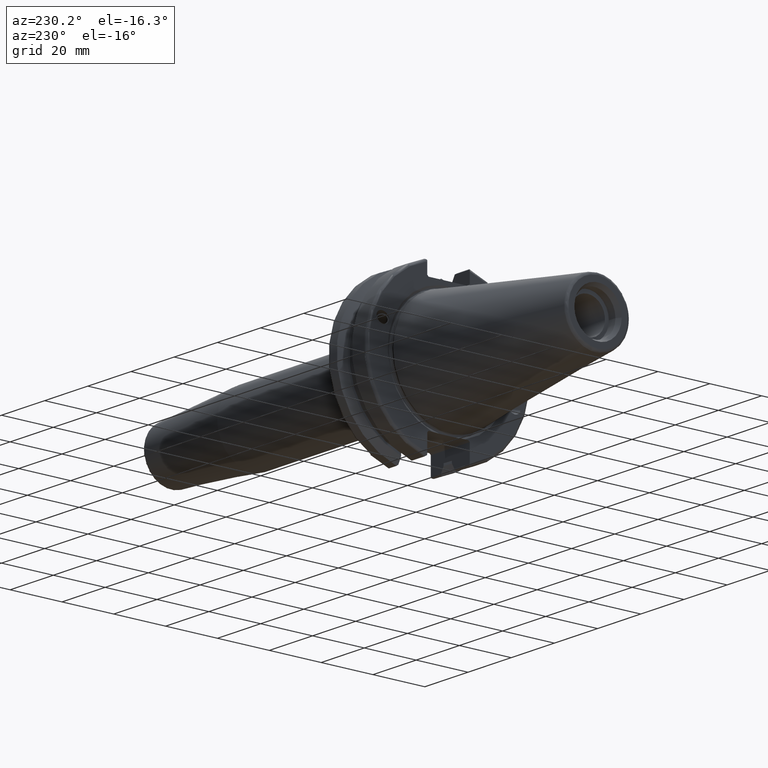
[diagram: clean part render]
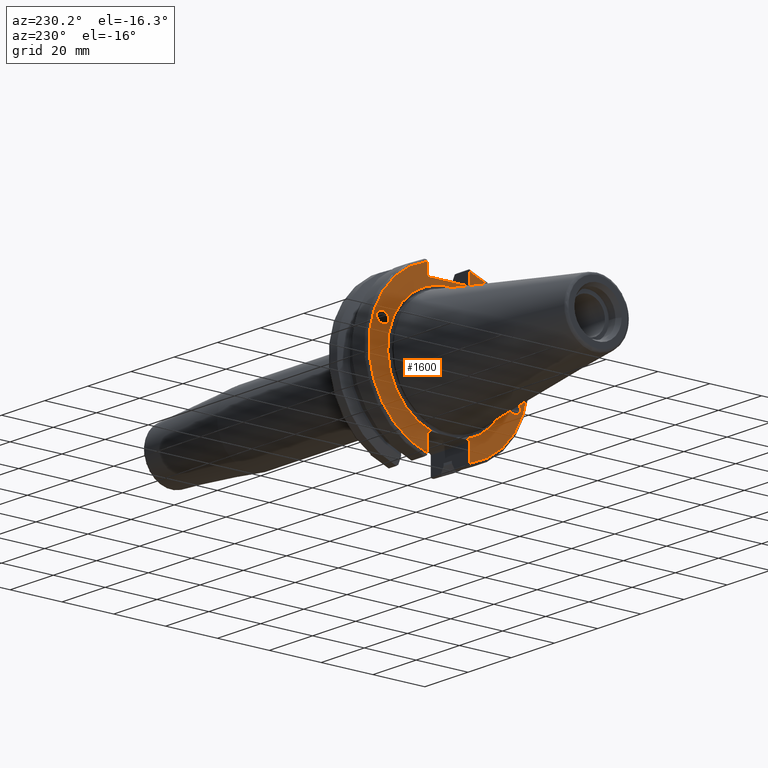
[diagram: same view with one face highlighted and labeled with its STEP entity id]
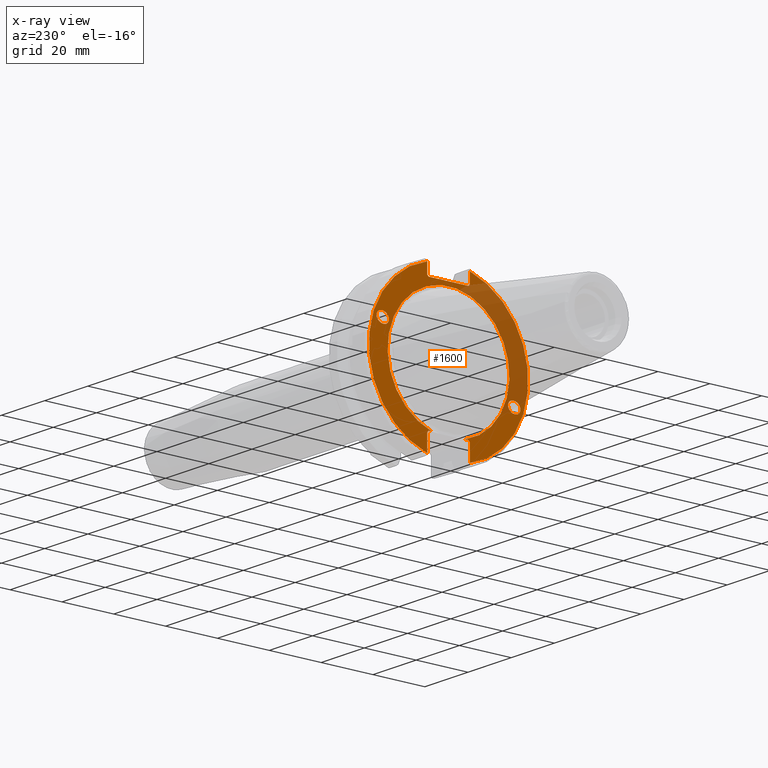
[diagram: x-ray of the same camera — body ghosted, the highlighted face saturated]
A machine part, auxiliary view. The second image highlights one B-rep face of the part: STEP entity #1600.
The next image is the same camera in x-ray: the body ghosted, the highlighted face saturated — about 31% of this face is hidden behind the body in this view.
In plain terms, the highlighted planar face has unit normal (-1, 0, 0).
Its self-contained STEP definition (entity closure, byte-faithful):
#75=FACE_BOUND('',#335,.T.);
#76=FACE_BOUND('',#336,.T.);
#99=PLANE('',#1785);
#137=ELLIPSE('',#1723,2.4415491775229,1.99999999999999);
#146=ELLIPSE('',#1766,2.4415491775229,1.99999999999999);
#231=FACE_OUTER_BOUND('',#334,.T.);
#334=EDGE_LOOP('',(#1351,#1352,#1353,#1354,#1355,#1356,#1357,#1358,#1359,
#1360,#1361,#1362,#1363,#1364));
#335=EDGE_LOOP('',(#1365));
#336=EDGE_LOOP('',(#1366));
#429=LINE('',#2835,#527);
#432=LINE('',#2885,#530);
#440=LINE('',#2921,#538);
#444=LINE('',#2989,#542);
#445=LINE('',#2991,#543);
#446=LINE('',#2993,#544);
#447=LINE('',#2994,#545);
#448=LINE('',#2996,#546);
#449=LINE('',#2998,#547);
#450=LINE('',#3002,#548);
#451=LINE('',#3003,#549);
#527=VECTOR('',#2122,10.);
#530=VECTOR('',#2131,10.);
#538=VECTOR('',#2141,10.);
#542=VECTOR('',#2167,10.);
#543=VECTOR('',#2168,10.);
#544=VECTOR('',#2169,10.);
#545=VECTOR('',#2170,10.);
#546=VECTOR('',#2171,10.);
#547=VECTOR('',#2172,10.);
#548=VECTOR('',#2175,10.);
#549=VECTOR('',#2176,10.);
#620=CIRCLE('',#1777,30.75);
#623=CIRCLE('',#1784,30.75);
#624=CIRCLE('',#1786,23.5);
#707=VERTEX_POINT('',#2603);
#747=VERTEX_POINT('',#2786);
#754=VERTEX_POINT('',#2832);
#755=VERTEX_POINT('',#2834);
#761=VERTEX_POINT('',#2882);
#762=VERTEX_POINT('',#2884);
#770=VERTEX_POINT('',#2913);
#771=VERTEX_POINT('',#2920);
#779=VERTEX_POINT('',#2979);
#780=VERTEX_POINT('',#2988);
#781=VERTEX_POINT('',#2990);
#782=VERTEX_POINT('',#2992);
#783=VERTEX_POINT('',#2995);
#784=VERTEX_POINT('',#2997);
#785=VERTEX_POINT('',#2999);
#786=VERTEX_POINT('',#3001);
#886=EDGE_CURVE('',#707,#707,#137,.T.);
#942=EDGE_CURVE('',#747,#747,#146,.T.);
#952=EDGE_CURVE('',#755,#754,#429,.T.);
#962=EDGE_CURVE('',#762,#761,#432,.T.);
#974=EDGE_CURVE('',#771,#770,#440,.T.);
#979=EDGE_CURVE('',#762,#770,#620,.T.);
#988=EDGE_CURVE('',#755,#779,#623,.T.);
#990=EDGE_CURVE('',#780,#761,#444,.T.);
#991=EDGE_CURVE('',#780,#781,#445,.T.);
#992=EDGE_CURVE('',#782,#781,#446,.T.);
#993=EDGE_CURVE('',#782,#779,#447,.T.);
#994=EDGE_CURVE('',#783,#754,#448,.T.);
#995=EDGE_CURVE('',#783,#784,#449,.T.);
#996=EDGE_CURVE('',#784,#785,#624,.T.);
#997=EDGE_CURVE('',#785,#786,#450,.T.);
#998=EDGE_CURVE('',#771,#786,#451,.T.);
#1351=ORIENTED_EDGE('',*,*,#979,.F.);
#1352=ORIENTED_EDGE('',*,*,#962,.T.);
#1353=ORIENTED_EDGE('',*,*,#990,.F.);
#1354=ORIENTED_EDGE('',*,*,#991,.T.);
#1355=ORIENTED_EDGE('',*,*,#992,.F.);
#1356=ORIENTED_EDGE('',*,*,#993,.T.);
#1357=ORIENTED_EDGE('',*,*,#988,.F.);
#1358=ORIENTED_EDGE('',*,*,#952,.T.);
#1359=ORIENTED_EDGE('',*,*,#994,.F.);
#1360=ORIENTED_EDGE('',*,*,#995,.T.);
#1361=ORIENTED_EDGE('',*,*,#996,.T.);
#1362=ORIENTED_EDGE('',*,*,#997,.T.);
#1363=ORIENTED_EDGE('',*,*,#998,.F.);
#1364=ORIENTED_EDGE('',*,*,#974,.T.);
#1365=ORIENTED_EDGE('',*,*,#886,.T.);
#1366=ORIENTED_EDGE('',*,*,#942,.T.);
#1600=ADVANCED_FACE('',(#231,#75,#76),#99,.T.);
#1723=AXIS2_PLACEMENT_3D('',#2605,#2006,#2007);
#1766=AXIS2_PLACEMENT_3D('',#2788,#2109,#2110);
#1777=AXIS2_PLACEMENT_3D('',#2943,#2147,#2148);
#1784=AXIS2_PLACEMENT_3D('',#2980,#2163,#2164);
#1785=AXIS2_PLACEMENT_3D('',#2987,#2165,#2166);
#1786=AXIS2_PLACEMENT_3D('',#3000,#2173,#2174);
#2006=DIRECTION('center_axis',(1.,0.,0.));
#2007=DIRECTION('ref_axis',(0.,-0.939692620785908,-0.342020143325669));
#2109=DIRECTION('center_axis',(1.,0.,0.));
#2110=DIRECTION('ref_axis',(0.,0.939692620785908,0.342020143325669));
#2122=DIRECTION('',(0.,0.,1.));
#2131=DIRECTION('',(0.,0.,-1.));
#2141=DIRECTION('',(0.,0.,-1.));
#2147=DIRECTION('center_axis',(1.,0.,0.));
#2148=DIRECTION('ref_axis',(0.,-1.,1.60812264967664E-16));
#2163=DIRECTION('center_axis',(1.,0.,0.));
#2164=DIRECTION('ref_axis',(0.,1.,1.60812264967664E-16));
#2165=DIRECTION('center_axis',(-1.,0.,0.));
#2166=DIRECTION('ref_axis',(0.,0.,1.));
#2167=DIRECTION('',(0.,-0.70710678118655,0.707106781186545));
#2168=DIRECTION('',(0.,1.,0.));
#2169=DIRECTION('',(0.,-0.707106781186549,-0.707106781186546));
#2170=DIRECTION('',(0.,0.,1.));
#2171=DIRECTION('',(0.,0.707106781186549,-0.707106781186546));
#2172=DIRECTION('',(0.,-1.,0.));
#2173=DIRECTION('center_axis',(1.,0.,0.));
#2174=DIRECTION('ref_axis',(0.,0.,-1.));
#2175=DIRECTION('',(0.,-1.,0.));
#2176=DIRECTION('',(0.,0.707106781186549,0.707106781186546));
#2603=CARTESIAN_POINT('',(1.,-23.0773950158154,-8.39948487016));
#2605=CARTESIAN_POINT('Origin',(1.,-25.3717007612195,-9.23454386979305));
#2786=CARTESIAN_POINT('',(1.,23.0773950158154,8.39948487016001));
#2788=CARTESIAN_POINT('Origin',(1.,25.3717007612195,9.23454386979306));
#2832=CARTESIAN_POINT('',(1.,8.18999999999999,-23.1));
#2834=CARTESIAN_POINT('',(1.,8.18999999999999,-29.6392712461019));
#2835=CARTESIAN_POINT('',(1.,8.18999999999999,-11.3));
#2882=CARTESIAN_POINT('',(1.,-8.18999999999999,25.5));
#2884=CARTESIAN_POINT('',(1.,-8.18999999999999,29.6392712461019));
#2885=CARTESIAN_POINT('',(1.,-8.18999999999999,12.5));
#2913=CARTESIAN_POINT('',(1.,-8.19,-29.6392712461019));
#2920=CARTESIAN_POINT('',(1.,-8.19,-23.1));
#2921=CARTESIAN_POINT('',(1.,-8.19,-11.3));
#2943=CARTESIAN_POINT('Origin',(1.,0.,0.));
#2979=CARTESIAN_POINT('',(1.,8.19,29.6392712461019));
#2980=CARTESIAN_POINT('Origin',(1.,0.,0.));
#2987=CARTESIAN_POINT('Origin',(1.,31.75,0.));
#2988=CARTESIAN_POINT('',(1.,-7.68999999999999,25.));
#2989=CARTESIAN_POINT('',(1.,8.29500000000007,9.01500000000004));
#2990=CARTESIAN_POINT('',(1.,7.69,25.));
#2991=CARTESIAN_POINT('',(1.,15.875,25.));
#2992=CARTESIAN_POINT('',(1.,8.19,25.5));
#2993=CARTESIAN_POINT('',(1.,7.58000000000002,24.89));
#2994=CARTESIAN_POINT('',(1.,8.19,12.5));
#2995=CARTESIAN_POINT('',(1.,7.69,-22.6));
#2996=CARTESIAN_POINT('',(0.999999999999999,8.18000000000002,-23.09));
#2997=CARTESIAN_POINT('',(0.999999999999997,6.4412731660752,-22.6));
#2998=CARTESIAN_POINT('',(1.,15.875,-22.6));
#2999=CARTESIAN_POINT('',(1.,-6.44127316607517,-22.6));
#3000=CARTESIAN_POINT('Origin',(0.999999999999996,0.,0.));
#3001=CARTESIAN_POINT('',(1.,-7.69,-22.6));
#3002=CARTESIAN_POINT('',(1.,15.875,-22.6));
#3003=CARTESIAN_POINT('',(1.,7.69500000000004,-7.21500000000002));